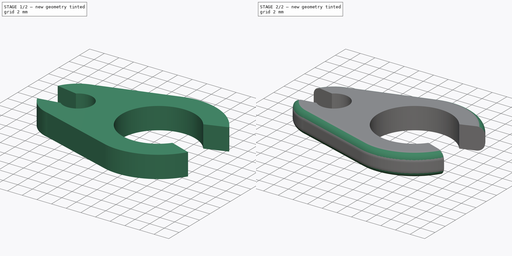
[diagram: build sequence overview — one tinted view per stage of 2, left to right]
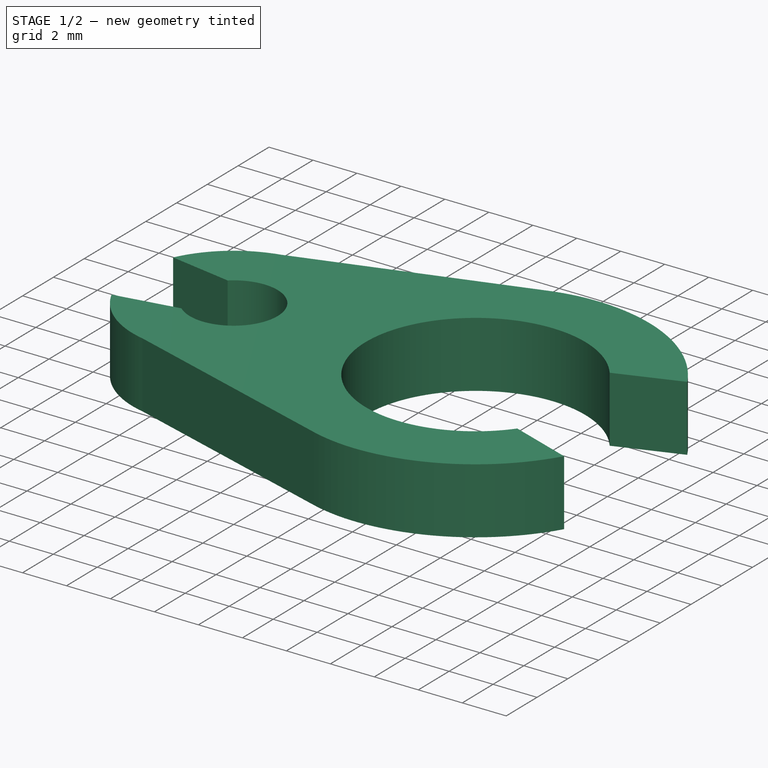
[diagram: stage 1 of 2 — iso view after this stage's code; geometry added in this stage tinted green]
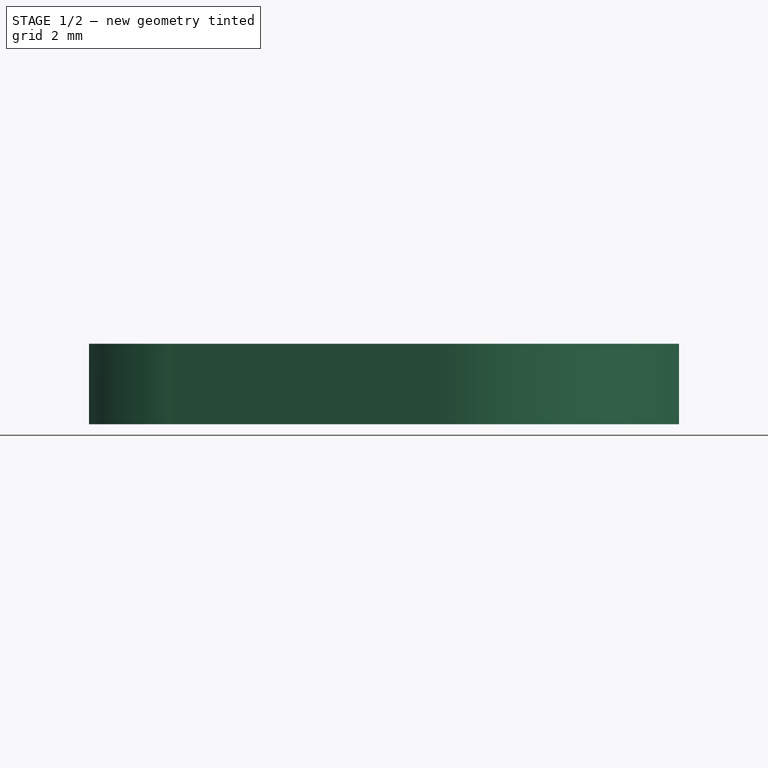
[diagram: stage 1 of 2 — front view after this stage's code; geometry added in this stage tinted green]
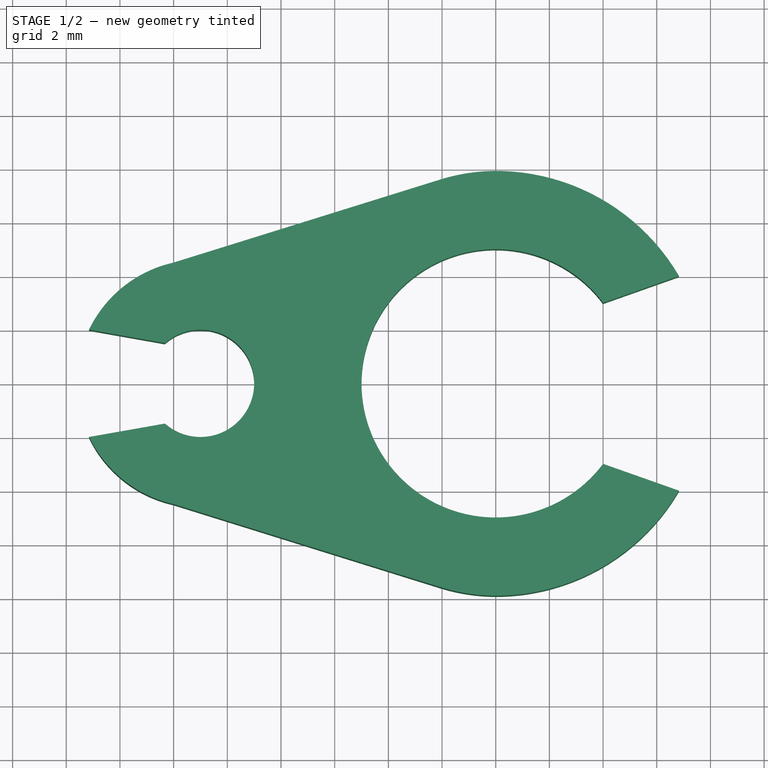
[diagram: stage 1 of 2 — top view after this stage's code; geometry added in this stage tinted green]
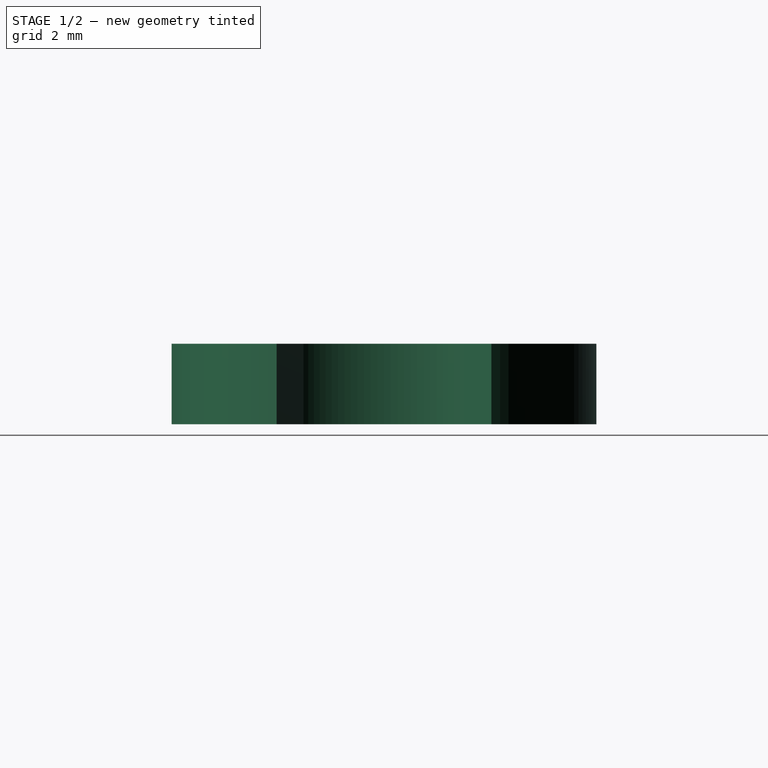
[diagram: stage 1 of 2 — right view after this stage's code; geometry added in this stage tinted green]
FCSTD DOCUMENT  (FreeCAD 0.16R6707 (Git))
Label: Bowden_Tube_ Wire_Bundle_Clip
License: CreativeCommons Attribution-NonCommercial
LicenseURL: http://creativecommons.org/licenses/by-nc/4.0/
objects: PartDesign::Fillet×2, Sketcher::SketchObject×1, PartDesign::Pad×1
note: 5 computed .brp shape members not serialized (recipe doc carries the construction recipe); baked Part::Feature solids carry a one-line shape summary decoded from their .brp

FEATURE [Sketcher::SketchObject] Sketch
  sketch-geometry (12):
    g0: ArcOfCircle CenterX=-5 CenterY=0 CenterZ=0 NormalX=0 NormalY=0 NormalZ=1 Radius=2 StartAngle=3.98965 EndAngle=8.57672
    g1: ArcOfCircle CenterX=6 CenterY=0 CenterZ=0 NormalX=0 NormalY=0 NormalZ=1 Radius=5 StartAngle=0.643501 EndAngle=5.63968
    g2: LineSegment StartX=-6 StartY=4.5 StartZ=0 EndX=4.50248 EndY=7.77077 EndZ=0
    g3: LineSegment StartX=-6 StartY=-4.5 StartZ=0 EndX=4.50248 EndY=-7.77077 EndZ=0
    g4: ArcOfCircle CenterX=6 CenterY=0 CenterZ=0 NormalX=0 NormalY=0 NormalZ=1 Radius=7.91375 StartAngle=4.52201 EndAngle=5.75328
    g5: ArcOfCircle CenterX=-5 CenterY=0 CenterZ=0 NormalX=0 NormalY=0 NormalZ=1 Radius=4.60977 StartAngle=1.78947 EndAngle=2.69282
    g6: LineSegment StartX=-9.15331 StartY=2 StartZ=0 EndX=-6.32288 EndY=1.5 EndZ=0
    g7: LineSegment StartX=-6.32288 StartY=-1.5 StartZ=0 EndX=-9.15331 EndY=-2 EndZ=0
    g8: ArcOfCircle CenterX=-5 CenterY=0 CenterZ=0 NormalX=0 NormalY=0 NormalZ=1 Radius=4.60977 StartAngle=3.59037 EndAngle=4.49372
    g9: LineSegment StartX=10 StartY=3 StartZ=0 EndX=12.8284 EndY=4 EndZ=0
    g10: LineSegment StartX=10 StartY=-3 StartZ=0 EndX=12.8284 EndY=-4 EndZ=0
    g11: ArcOfCircle CenterX=6 CenterY=0 CenterZ=0 NormalX=0 NormalY=0 NormalZ=1 Radius=7.91375 StartAngle=0.529903 EndAngle=1.76117
  constraints (36):
    c: Radius(g1) = 5
    c: Radius(g0) = 2
    c: DistanceX(g0,g-1) = 5
    c: Coincident(g4,g1)
    c: Coincident(g11,g2)
    c: Coincident(g4,g3)
    c: Coincident(g5,g0)
    c: Coincident(g5,g2)
    c: Coincident(g8,g3)
    c: Symmetric(g3,g2,g-1)
    c: Symmetric(g2,g3,g-1)
    c: Coincident(g0,g7)
    c: Coincident(g0,g6)
    c: Equal(g5,g8)
    c: Coincident(g5,g6)
    c: Coincident(g8,g7)
    c: Coincident(g5,g8)
    c: Coincident(g1,g9)
    c: Coincident(g1,g10)
    c: Equal(g4,g11)
    c: Coincident(g4,g10)
    c: Coincident(g11,g9)
    c: Coincident(g4,g11)
    c: Symmetric(g0,g0,g-1)
    c: Symmetric(g7,g5,g-1)
    c: DistanceY(g7,g5) = 4
    c: DistanceY(g0,g0) = 3
    c: DistanceX(g3,g-1) = 6
    c: DistanceY(g3,g2) = 9
    c: Symmetric(g1,g1,g-1)
    c: Symmetric(g4,g9,g-1)
    c: DistanceX(g-1,g1) = 6
    c: DistanceY(g4,g9) = 8
    c: DistanceY(g1,g1) = 6
    c: Distance(g3) = 11
    c: Distance(g9) = 3
FEATURE [PartDesign::Pad] Pad
  Length = 3
  Length2 = 100
  Sketch = -> Sketch
  Type = 0
FEATURE [PartDesign::Fillet] Fillet
  Base = -> Pad [Edge26,Edge11]
  Radius = 7
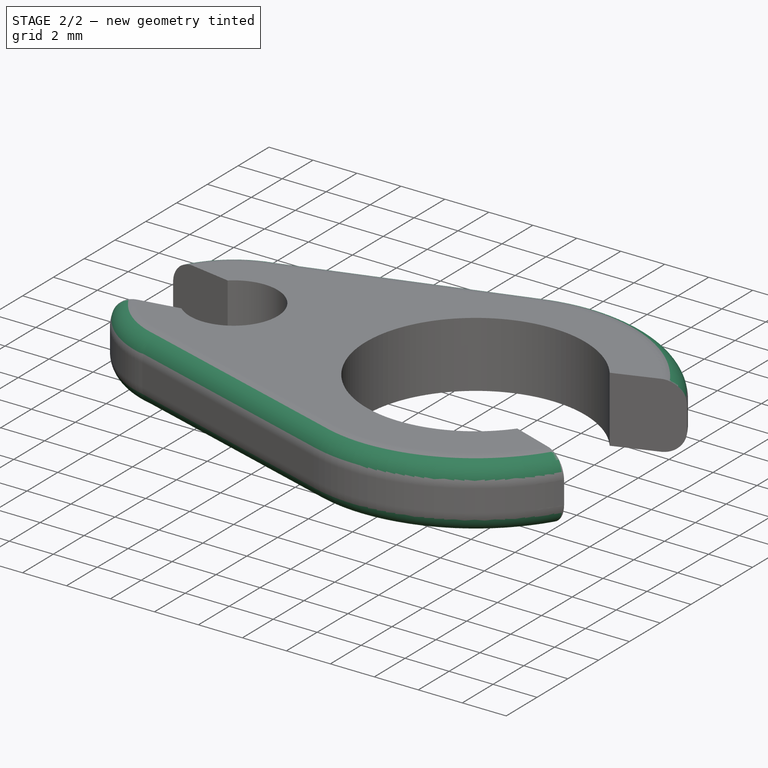
[diagram: stage 2 of 2 — iso view after this stage's code; geometry added in this stage tinted green]
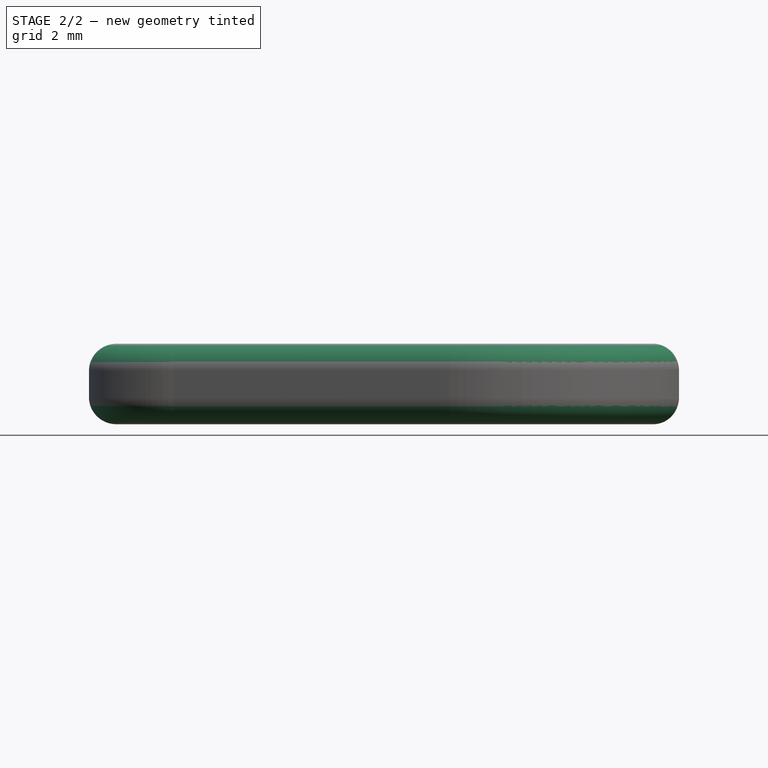
[diagram: stage 2 of 2 — front view after this stage's code; geometry added in this stage tinted green]
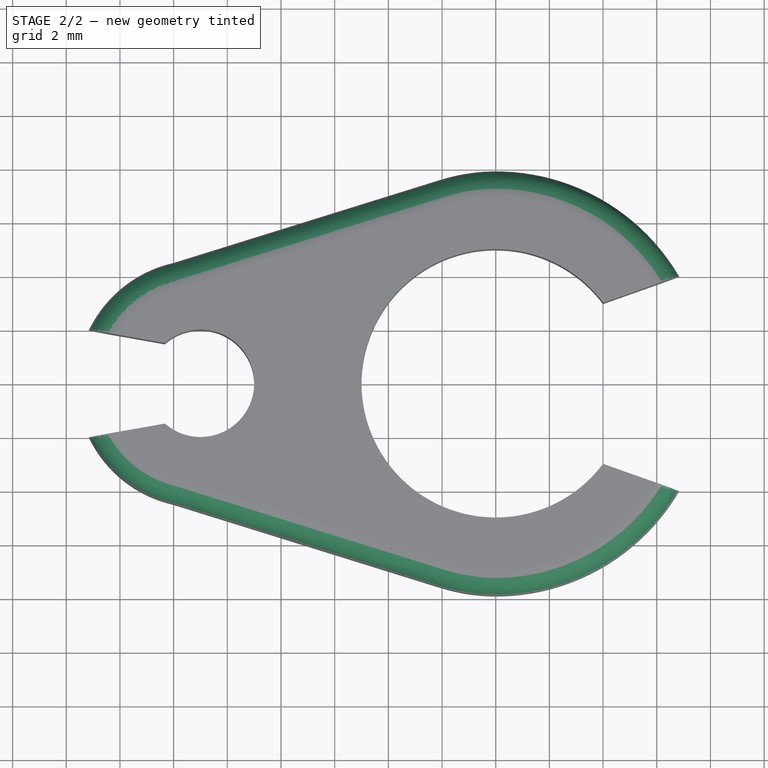
[diagram: stage 2 of 2 — top view after this stage's code; geometry added in this stage tinted green]
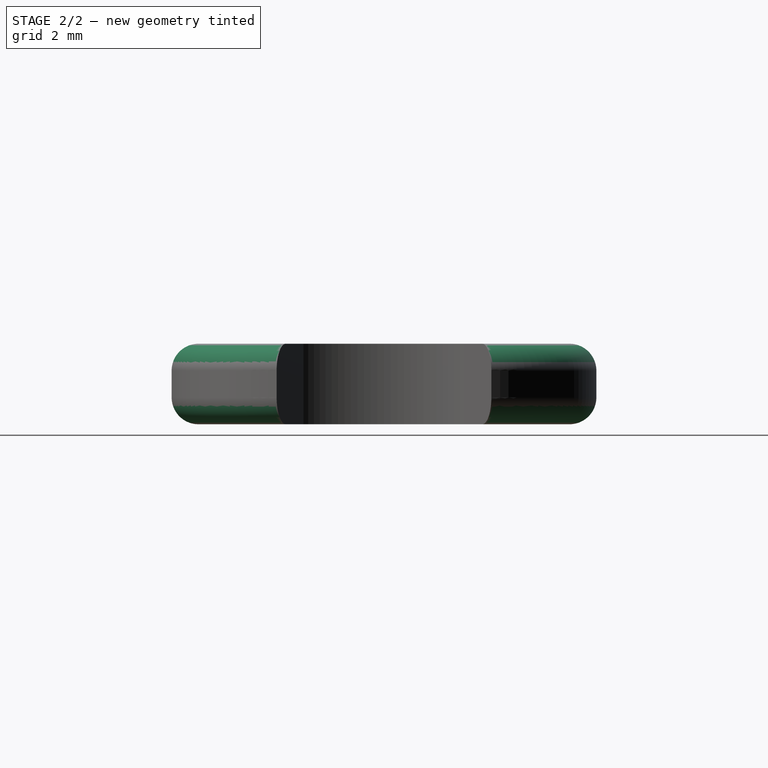
[diagram: stage 2 of 2 — right view after this stage's code; geometry added in this stage tinted green]
FEATURE [PartDesign::Fillet] Fillet001
  Base = -> Fillet [Edge31,Edge4,Edge16,Edge1]
  Radius = 1
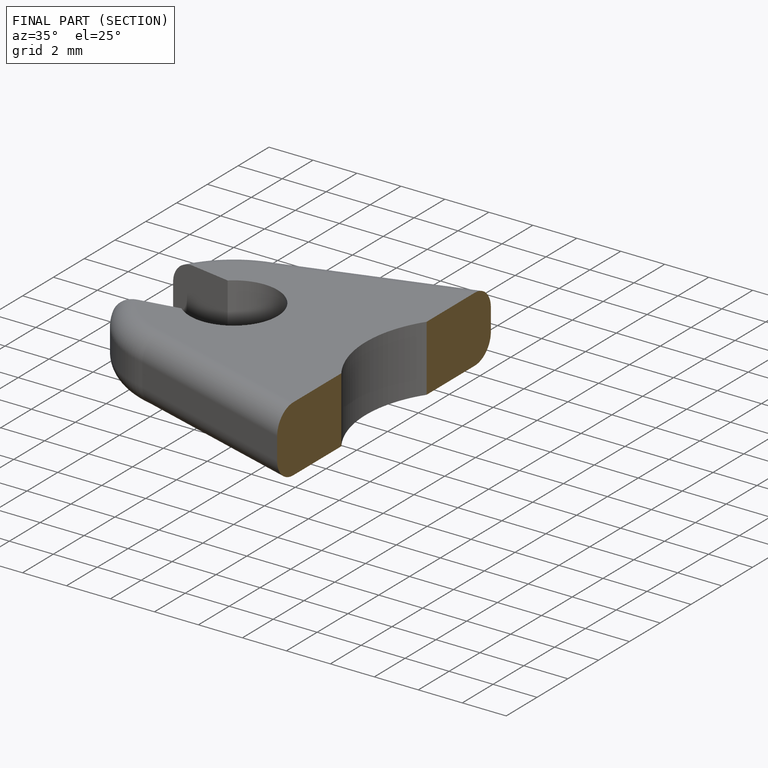
[diagram: finished part — half-section view (interior)]
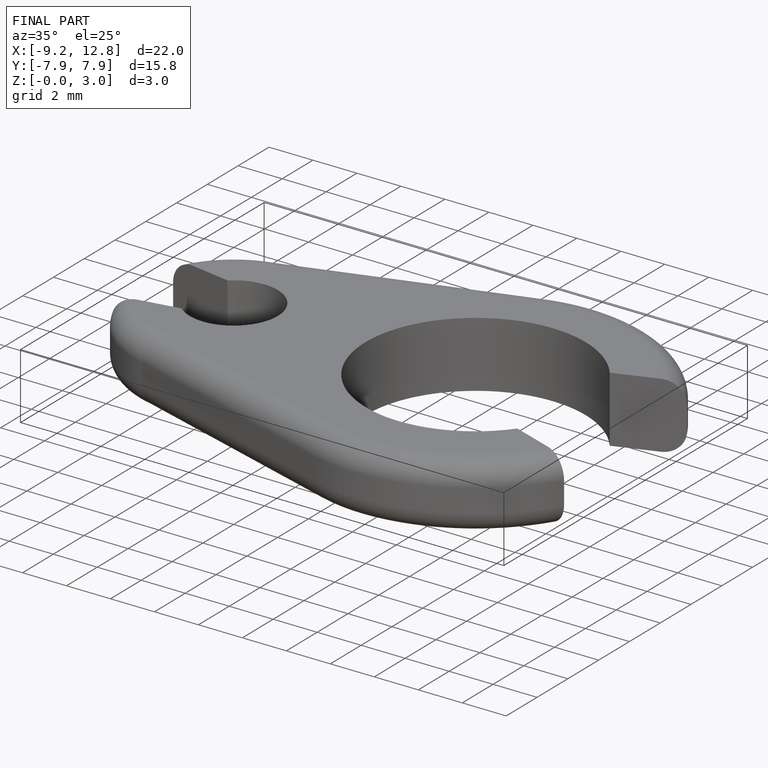
[diagram: finished part — iso view with bounding-box wireframe]
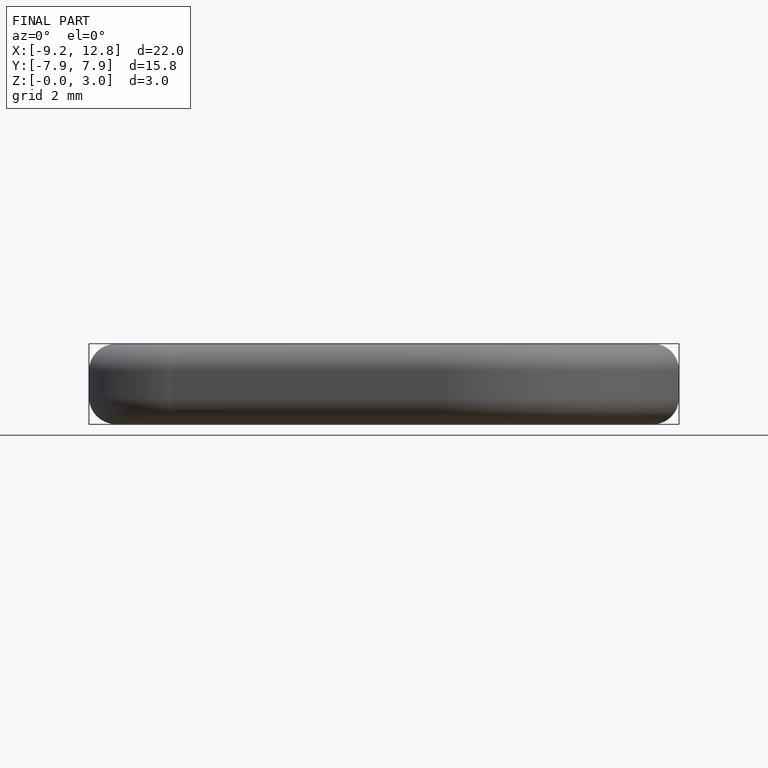
[diagram: finished part — front view with bounding-box wireframe]
